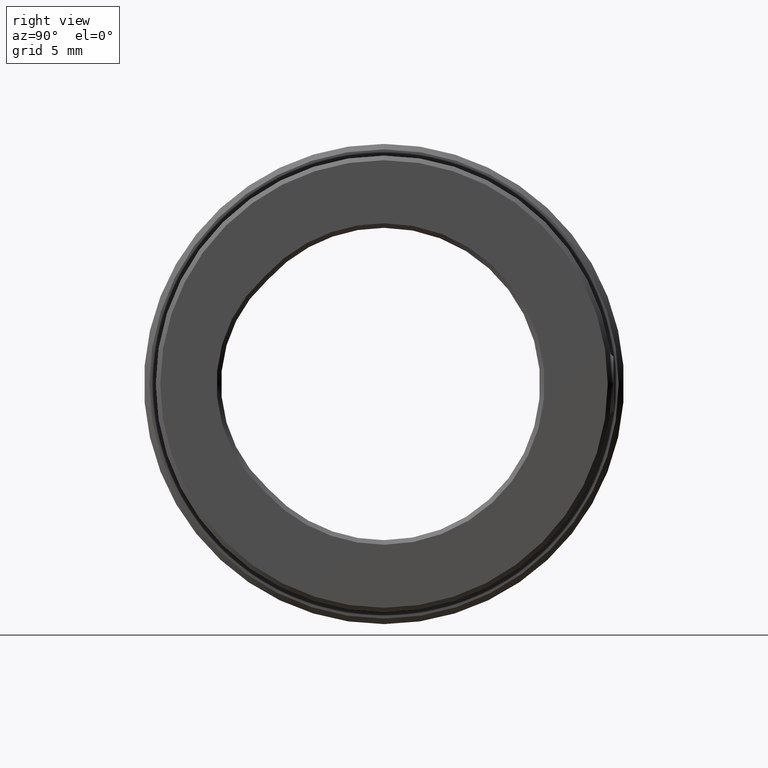
[diagram: clean part render]
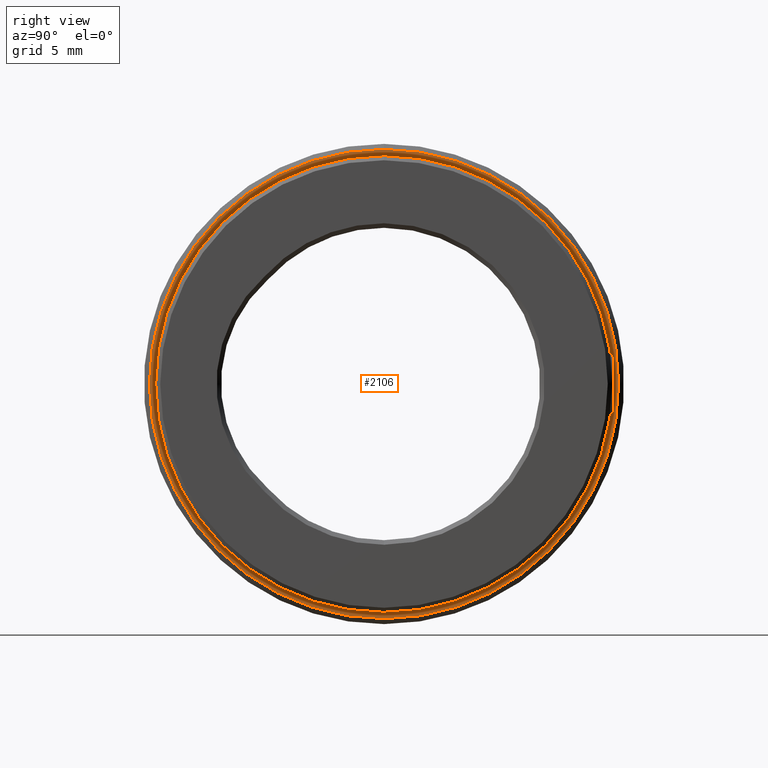
[diagram: same view with one face highlighted and labeled with its STEP entity id]
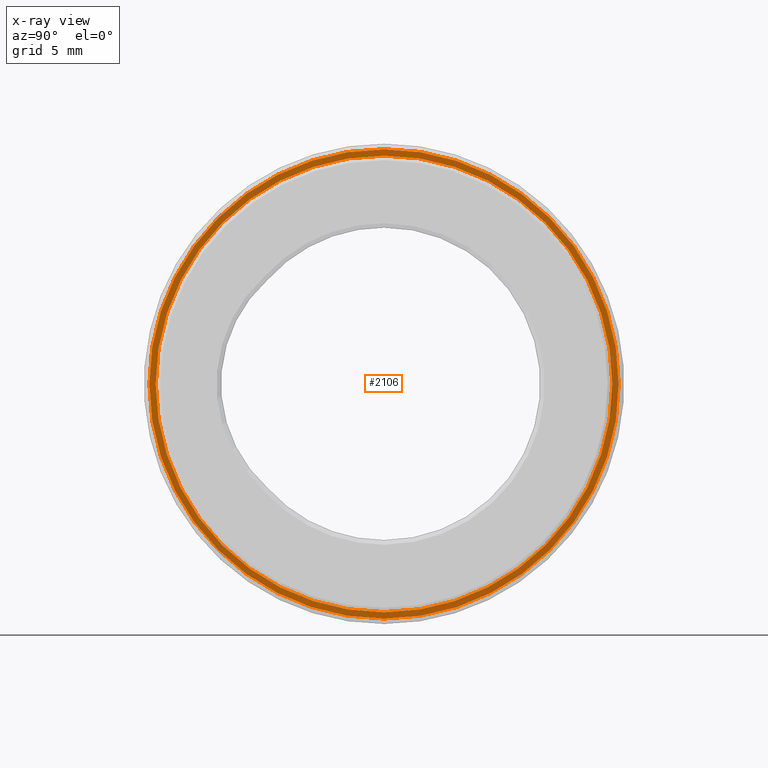
[diagram: x-ray of the same camera — body ghosted, the highlighted face saturated]
A machine part, right view. The second image highlights one B-rep face of the part: STEP entity #2106.
The next image is the same camera in x-ray: the body ghosted, the highlighted face saturated — about 1% of this face is hidden behind the body in this view.
In plain terms, the highlighted planar face has unit normal (1, 0, 0).
Its self-contained STEP definition (entity closure, byte-faithful):
#16 = VERTEX_POINT ( 'NONE', #2387 ) ;
#31 = AXIS2_PLACEMENT_3D ( 'NONE', #56, #2893, #3953 ) ;
#56 = CARTESIAN_POINT ( 'NONE',  ( 5.100000000000000533, 0.000000000000000000, 0.000000000000000000 ) ) ;
#205 = EDGE_LOOP ( 'NONE', ( #1909, #1840 ) ) ;
#285 = DIRECTION ( 'NONE',  ( -1.000000000000000000, -0.000000000000000000, -0.000000000000000000 ) ) ;
#331 = EDGE_CURVE ( 'NONE', #3502, #3773, #1798, .T. ) ;
#674 = EDGE_LOOP ( 'NONE', ( #1152, #1466 ) ) ;
#728 = DIRECTION ( 'NONE',  ( 0.000000000000000000, 0.000000000000000000, -1.000000000000000000 ) ) ;
#806 = EDGE_CURVE ( 'NONE', #3701, #16, #3411, .T. ) ;
#1064 = CARTESIAN_POINT ( 'NONE',  ( 5.099999999999999645, 0.000000000000000000, 0.000000000000000000 ) ) ;
#1152 = ORIENTED_EDGE ( 'NONE', *, *, #331, .T. ) ;
#1370 = FACE_BOUND ( 'NONE', #205, .T. ) ;
#1411 = AXIS2_PLACEMENT_3D ( 'NONE', #2394, #285, #4517 ) ;
#1466 = ORIENTED_EDGE ( 'NONE', *, *, #1982, .T. ) ;
#1798 = CIRCLE ( 'NONE', #4387, 12.84499999999998998 ) ;
#1840 = ORIENTED_EDGE ( 'NONE', *, *, #806, .T. ) ;
#1909 = ORIENTED_EDGE ( 'NONE', *, *, #3036, .T. ) ;
#1951 = CARTESIAN_POINT ( 'NONE',  ( 5.099999999999999645, 1.591428515491984915E-15, -12.84499999999998998 ) ) ;
#1974 = CARTESIAN_POINT ( 'NONE',  ( 5.100000000000000533, 1.530808498934191521E-15, 12.50000000000000000 ) ) ;
#1982 = EDGE_CURVE ( 'NONE', #3773, #3502, #4302, .T. ) ;
#1994 = DIRECTION ( 'NONE',  ( 0.000000000000000000, 0.000000000000000000, -1.000000000000000000 ) ) ;
#2084 = DIRECTION ( 'NONE',  ( 0.000000000000000000, 0.000000000000000000, -1.000000000000000000 ) ) ;
#2106 = ADVANCED_FACE ( 'NONE', ( #3135, #1370 ), #3523, .T. ) ;
#2255 = AXIS2_PLACEMENT_3D ( 'NONE', #1064, #2434, #2084 ) ;
#2259 = CIRCLE ( 'NONE', #31, 12.50000000000000000 ) ;
#2275 = CARTESIAN_POINT ( 'NONE',  ( 5.099999999999999645, 0.000000000000000000, 12.84499999999998998 ) ) ;
#2387 = CARTESIAN_POINT ( 'NONE',  ( 5.100000000000000533, 0.000000000000000000, -12.50000000000000000 ) ) ;
#2394 = CARTESIAN_POINT ( 'NONE',  ( 5.100000000000000533, 0.000000000000000000, 0.000000000000000000 ) ) ;
#2434 = DIRECTION ( 'NONE',  ( 1.000000000000000000, 0.000000000000000000, 0.000000000000000000 ) ) ;
#2893 = DIRECTION ( 'NONE',  ( -1.000000000000000000, -0.000000000000000000, -0.000000000000000000 ) ) ;
#3036 = EDGE_CURVE ( 'NONE', #16, #3701, #2259, .T. ) ;
#3135 = FACE_OUTER_BOUND ( 'NONE', #674, .T. ) ;
#3411 = CIRCLE ( 'NONE', #1411, 12.50000000000000000 ) ;
#3502 = VERTEX_POINT ( 'NONE', #2275 ) ;
#3523 = PLANE ( 'NONE',  #2255 ) ;
#3553 = DIRECTION ( 'NONE',  ( 1.000000000000000000, 0.000000000000000000, 0.000000000000000000 ) ) ;
#3701 = VERTEX_POINT ( 'NONE', #1974 ) ;
#3773 = VERTEX_POINT ( 'NONE', #1951 ) ;
#3788 = AXIS2_PLACEMENT_3D ( 'NONE', #4079, #4131, #1994 ) ;
#3902 = CARTESIAN_POINT ( 'NONE',  ( 5.099999999999999645, 0.000000000000000000, 0.000000000000000000 ) ) ;
#3953 = DIRECTION ( 'NONE',  ( 0.000000000000000000, 0.000000000000000000, -1.000000000000000000 ) ) ;
#4079 = CARTESIAN_POINT ( 'NONE',  ( 5.099999999999999645, 0.000000000000000000, 0.000000000000000000 ) ) ;
#4131 = DIRECTION ( 'NONE',  ( 1.000000000000000000, 0.000000000000000000, 0.000000000000000000 ) ) ;
#4302 = CIRCLE ( 'NONE', #3788, 12.84499999999998998 ) ;
#4387 = AXIS2_PLACEMENT_3D ( 'NONE', #3902, #3553, #728 ) ;
#4517 = DIRECTION ( 'NONE',  ( 0.000000000000000000, 0.000000000000000000, -1.000000000000000000 ) ) ;